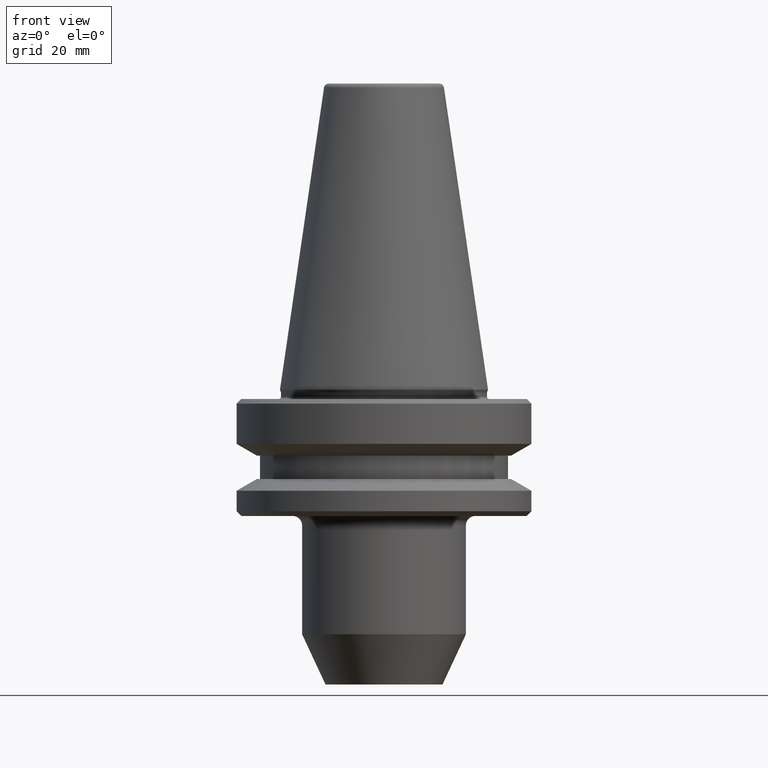
[diagram: clean part render]
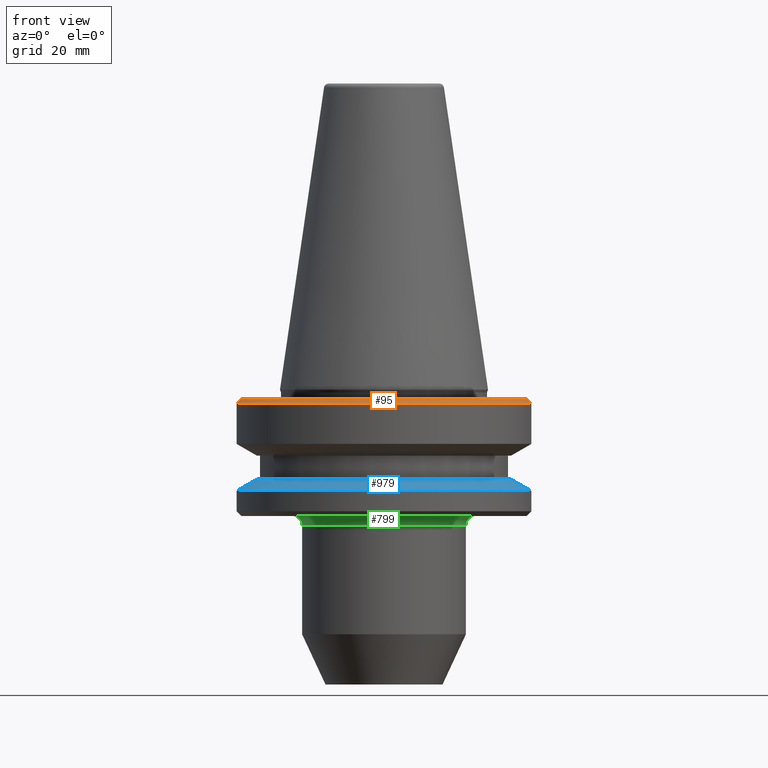
[diagram: same view with three faces highlighted in distinct colors, each labeled with its STEP entity id]
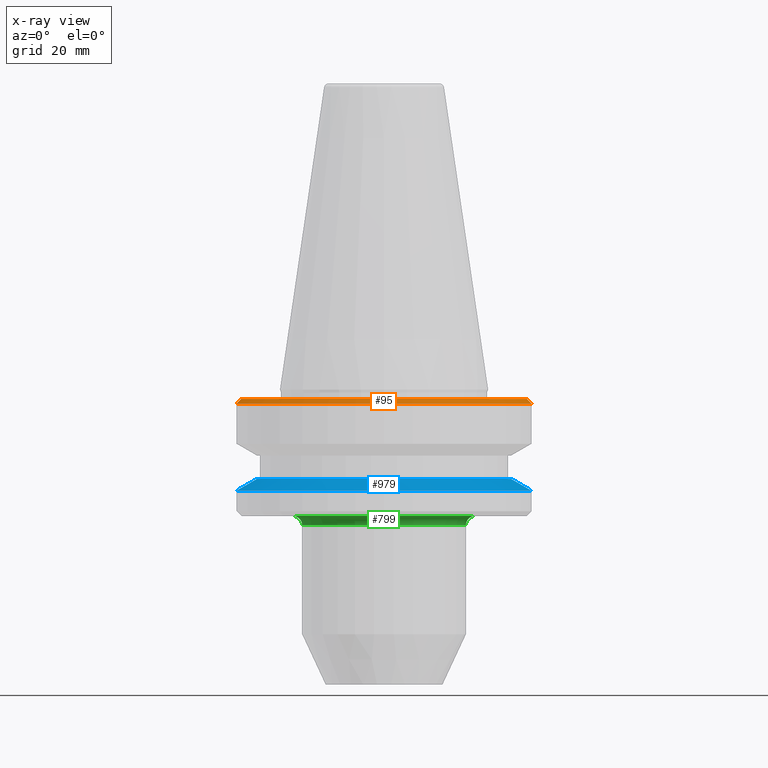
[diagram: x-ray of the same camera — body ghosted, the three highlighted faces saturated]
A machine part, front view with three faces highlighted in distinct colors.
The next image is the same camera in x-ray (body ghosted, the three faces saturated) — at least one of them is partly hidden behind the body in this view.
Their STEP definitions:

[orange] entity #95 — the highlighted conical surface has half-angle 45 deg.
#4 = CARTESIAN_POINT ( 'NONE',  ( 31.49999999999997200, 0.0000000000000000000, -2.999999999999780600 ) ) ;
#9 = CIRCLE ( 'NONE', #393, 31.49999999999997200 ) ;
#70 = ORIENTED_EDGE ( 'NONE', *, *, #150, .T. ) ;
#95 = ADVANCED_FACE ( 'NONE', ( #760 ), #1047, .T. ) ;
#112 = VERTEX_POINT ( 'NONE', #968 ) ;
#135 = DIRECTION ( 'NONE',  ( -0.0000000000000000000, -0.0000000000000000000, 1.000000000000000000 ) ) ;
#150 = EDGE_CURVE ( 'NONE', #418, #837, #399, .T. ) ;
#154 = DIRECTION ( 'NONE',  ( -0.7071067811865474600, 0.0000000000000000000, -0.7071067811865475700 ) ) ;
#162 = CARTESIAN_POINT ( 'NONE',  ( -30.49999999999997200, 0.0000000000000000000, -1.999999999999779700 ) ) ;
#228 = LINE ( 'NONE', #824, #424 ) ;
#258 = DIRECTION ( 'NONE',  ( 1.000000000000000000, 0.0000000000000000000, 0.0000000000000000000 ) ) ;
#286 = CARTESIAN_POINT ( 'NONE',  ( -31.49999999999997200, 0.0000000000000000000, -2.999999999999780600 ) ) ;
#308 = CARTESIAN_POINT ( 'NONE',  ( 0.0000000000000000000, 0.0000000000000000000, -1.999999999999779700 ) ) ;
#334 = CIRCLE ( 'NONE', #790, 30.49999999999997200 ) ;
#341 = EDGE_CURVE ( 'NONE', #837, #1051, #9, .T. ) ;
#342 = EDGE_LOOP ( 'NONE', ( #648, #897, #70, #567 ) ) ;
#393 = AXIS2_PLACEMENT_3D ( 'NONE', #493, #135, #1025 ) ;
#399 = LINE ( 'NONE', #286, #961 ) ;
#418 = VERTEX_POINT ( 'NONE', #162 ) ;
#424 = VECTOR ( 'NONE', #791, 1000.000000000000000 ) ;
#493 = CARTESIAN_POINT ( 'NONE',  ( 0.0000000000000000000, 0.0000000000000000000, -2.999999999999780600 ) ) ;
#567 = ORIENTED_EDGE ( 'NONE', *, *, #341, .T. ) ;
#570 = CARTESIAN_POINT ( 'NONE',  ( -31.49999999999997200, 3.857637417314159500E-015, -2.999999999999780600 ) ) ;
#595 = DIRECTION ( 'NONE',  ( -1.000000000000000000, 0.0000000000000000000, 0.0000000000000000000 ) ) ;
#648 = ORIENTED_EDGE ( 'NONE', *, *, #930, .F. ) ;
#706 = AXIS2_PLACEMENT_3D ( 'NONE', #752, #986, #595 ) ;
#752 = CARTESIAN_POINT ( 'NONE',  ( 0.0000000000000000000, 0.0000000000000000000, -2.999999999999780600 ) ) ;
#760 = FACE_OUTER_BOUND ( 'NONE', #342, .T. ) ;
#790 = AXIS2_PLACEMENT_3D ( 'NONE', #308, #922, #258 ) ;
#791 = DIRECTION ( 'NONE',  ( 0.7071067811865474600, 8.659560562354931600E-017, -0.7071067811865475700 ) ) ;
#824 = CARTESIAN_POINT ( 'NONE',  ( 31.49999999999997200, 3.857637417314159500E-015, -2.999999999999780600 ) ) ;
#837 = VERTEX_POINT ( 'NONE', #570 ) ;
#857 = EDGE_CURVE ( 'NONE', #418, #112, #334, .T. ) ;
#897 = ORIENTED_EDGE ( 'NONE', *, *, #857, .F. ) ;
#922 = DIRECTION ( 'NONE',  ( -0.0000000000000000000, -0.0000000000000000000, 1.000000000000000000 ) ) ;
#930 = EDGE_CURVE ( 'NONE', #112, #1051, #228, .T. ) ;
#961 = VECTOR ( 'NONE', #154, 1000.000000000000000 ) ;
#968 = CARTESIAN_POINT ( 'NONE',  ( 30.49999999999997200, 3.796405077356791200E-015, -1.999999999999779700 ) ) ;
#986 = DIRECTION ( 'NONE',  ( 0.0000000000000000000, 0.0000000000000000000, -1.000000000000000000 ) ) ;
#1025 = DIRECTION ( 'NONE',  ( 1.000000000000000000, 0.0000000000000000000, 0.0000000000000000000 ) ) ;
#1047 = CONICAL_SURFACE ( 'NONE', #706, 31.49999999999997200, 0.7853981633974482800 ) ;
#1051 = VERTEX_POINT ( 'NONE', #4 ) ;

[blue] entity #979 — the highlighted conical surface has half-angle 60 deg.
#34 = DIRECTION ( 'NONE',  ( -0.0000000000000000000, -0.0000000000000000000, 1.000000000000000000 ) ) ;
#42 = CARTESIAN_POINT ( 'NONE',  ( 0.0000000000000000000, 0.0000000000000000000, -21.60014200640453200 ) ) ;
#53 = EDGE_CURVE ( 'NONE', #1024, #218, #464, .T. ) ;
#76 = CARTESIAN_POINT ( 'NONE',  ( 27.16962701892167300, 3.592478546794586600E-015, -19.10000000008738000 ) ) ;
#86 = VERTEX_POINT ( 'NONE', #693 ) ;
#117 = LINE ( 'NONE', #462, #910 ) ;
#131 = EDGE_CURVE ( 'NONE', #218, #86, #234, .T. ) ;
#133 = EDGE_LOOP ( 'NONE', ( #387, #1020, #517, #445 ) ) ;
#215 = CARTESIAN_POINT ( 'NONE',  ( 31.50000000000019500, 3.857637417314186400E-015, -21.60014200640453200 ) ) ;
#218 = VERTEX_POINT ( 'NONE', #76 ) ;
#234 = LINE ( 'NONE', #215, #818 ) ;
#387 = ORIENTED_EDGE ( 'NONE', *, *, #131, .F. ) ;
#414 = AXIS2_PLACEMENT_3D ( 'NONE', #42, #508, #529 ) ;
#426 = VERTEX_POINT ( 'NONE', #972 ) ;
#427 = EDGE_CURVE ( 'NONE', #426, #86, #509, .T. ) ;
#433 = DIRECTION ( 'NONE',  ( -0.8660254037844400400, 0.0000000000000000000, -0.4999999999999976100 ) ) ;
#445 = ORIENTED_EDGE ( 'NONE', *, *, #427, .T. ) ;
#462 = CARTESIAN_POINT ( 'NONE',  ( -31.50000000000019500, 0.0000000000000000000, -21.60014200640453200 ) ) ;
#464 = CIRCLE ( 'NONE', #594, 27.16962701892167300 ) ;
#480 = DIRECTION ( 'NONE',  ( -0.0000000000000000000, -0.0000000000000000000, 1.000000000000000000 ) ) ;
#508 = DIRECTION ( 'NONE',  ( 0.0000000000000000000, 0.0000000000000000000, -1.000000000000000000 ) ) ;
#509 = CIRCLE ( 'NONE', #531, 31.50000000000019500 ) ;
#517 = ORIENTED_EDGE ( 'NONE', *, *, #901, .T. ) ;
#529 = DIRECTION ( 'NONE',  ( -1.000000000000000000, 0.0000000000000000000, 0.0000000000000000000 ) ) ;
#531 = AXIS2_PLACEMENT_3D ( 'NONE', #985, #480, #962 ) ;
#537 = CARTESIAN_POINT ( 'NONE',  ( 0.0000000000000000000, 0.0000000000000000000, -19.10000000008738000 ) ) ;
#585 = FACE_OUTER_BOUND ( 'NONE', #133, .T. ) ;
#594 = AXIS2_PLACEMENT_3D ( 'NONE', #537, #34, #949 ) ;
#693 = CARTESIAN_POINT ( 'NONE',  ( 31.50000000000019500, 0.0000000000000000000, -21.60014200640453200 ) ) ;
#818 = VECTOR ( 'NONE', #855, 1000.000000000000000 ) ;
#831 = CARTESIAN_POINT ( 'NONE',  ( -27.16962701892167300, 0.0000000000000000000, -19.10000000008738000 ) ) ;
#855 = DIRECTION ( 'NONE',  ( 0.8660254037844400400, 1.060575238724908600E-016, -0.4999999999999976100 ) ) ;
#901 = EDGE_CURVE ( 'NONE', #1024, #426, #117, .T. ) ;
#910 = VECTOR ( 'NONE', #433, 1000.000000000000000 ) ;
#949 = DIRECTION ( 'NONE',  ( 1.000000000000000000, 0.0000000000000000000, 0.0000000000000000000 ) ) ;
#962 = DIRECTION ( 'NONE',  ( 1.000000000000000000, 0.0000000000000000000, 0.0000000000000000000 ) ) ;
#966 = CONICAL_SURFACE ( 'NONE', #414, 31.50000000000019500, 1.047197551196600500 ) ;
#972 = CARTESIAN_POINT ( 'NONE',  ( -31.50000000000019500, 3.857637417314186400E-015, -21.60014200640453200 ) ) ;
#979 = ADVANCED_FACE ( 'NONE', ( #585 ), #966, .T. ) ;
#985 = CARTESIAN_POINT ( 'NONE',  ( 0.0000000000000000000, 0.0000000000000000000, -21.60014200640453200 ) ) ;
#1020 = ORIENTED_EDGE ( 'NONE', *, *, #53, .F. ) ;
#1024 = VERTEX_POINT ( 'NONE', #831 ) ;

[green] entity #799 — the highlighted toroidal blend (fillet) surface has major radius 19.5 mm and minor (blend) radius 2 mm.
#2 = CARTESIAN_POINT ( 'NONE',  ( -19.49999999999829500, 2.388061258337130300E-015, -29.00000000008767700 ) ) ;
#12 = VERTEX_POINT ( 'NONE', #1018 ) ;
#24 = FACE_OUTER_BOUND ( 'NONE', #888, .T. ) ;
#27 = VERTEX_POINT ( 'NONE', #873 ) ;
#99 = AXIS2_PLACEMENT_3D ( 'NONE', #2, #566, #309 ) ;
#120 = DIRECTION ( 'NONE',  ( 0.0000000000000000000, -1.000000000000000000, 0.0000000000000000000 ) ) ;
#176 = CARTESIAN_POINT ( 'NONE',  ( 0.0000000000000000000, 0.0000000000000000000, -29.00000000008767700 ) ) ;
#182 = ORIENTED_EDGE ( 'NONE', *, *, #703, .F. ) ;
#186 = DIRECTION ( 'NONE',  ( -0.0000000000000000000, -0.0000000000000000000, 1.000000000000000000 ) ) ;
#216 = CIRCLE ( 'NONE', #691, 2.000000000000001800 ) ;
#231 = DIRECTION ( 'NONE',  ( 1.000000000000000000, 0.0000000000000000000, 0.0000000000000000000 ) ) ;
#309 = DIRECTION ( 'NONE',  ( -1.000000000000000000, 1.224646799147353500E-016, 0.0000000000000000000 ) ) ;
#310 = CARTESIAN_POINT ( 'NONE',  ( 19.49999999999829500, 0.0000000000000000000, -29.00000000008767700 ) ) ;
#322 = VERTEX_POINT ( 'NONE', #634 ) ;
#403 = ORIENTED_EDGE ( 'NONE', *, *, #629, .T. ) ;
#406 = DIRECTION ( 'NONE',  ( -0.0000000000000000000, -0.0000000000000000000, 1.000000000000000000 ) ) ;
#420 = DIRECTION ( 'NONE',  ( -0.0000000000000000000, -0.0000000000000000000, 1.000000000000000000 ) ) ;
#470 = ORIENTED_EDGE ( 'NONE', *, *, #605, .T. ) ;
#475 = DIRECTION ( 'NONE',  ( 1.000000000000000000, 0.0000000000000000000, 0.0000000000000000000 ) ) ;
#490 = EDGE_CURVE ( 'NONE', #322, #27, #663, .T. ) ;
#566 = DIRECTION ( 'NONE',  ( 1.224646799147353200E-016, 1.000000000000000000, 0.0000000000000000000 ) ) ;
#583 = ORIENTED_EDGE ( 'NONE', *, *, #490, .F. ) ;
#603 = TOROIDAL_SURFACE ( 'NONE', #992, 19.49999999999829500, 2.000000000000001800 ) ;
#605 = EDGE_CURVE ( 'NONE', #322, #779, #947, .T. ) ;
#606 = DIRECTION ( 'NONE',  ( 0.0000000000000000000, 0.0000000000000000000, -1.000000000000000000 ) ) ;
#629 = EDGE_CURVE ( 'NONE', #779, #12, #918, .T. ) ;
#634 = CARTESIAN_POINT ( 'NONE',  ( -19.49999999999829500, 2.388061258337130300E-015, -27.00000000008767700 ) ) ;
#663 = CIRCLE ( 'NONE', #887, 19.49999999999829500 ) ;
#685 = CARTESIAN_POINT ( 'NONE',  ( -17.49999999999829500, 2.143131898507659200E-015, -29.00000000008767700 ) ) ;
#691 = AXIS2_PLACEMENT_3D ( 'NONE', #310, #120, #606 ) ;
#703 = EDGE_CURVE ( 'NONE', #27, #12, #216, .T. ) ;
#704 = CARTESIAN_POINT ( 'NONE',  ( 0.0000000000000000000, 0.0000000000000000000, -27.00000000008767700 ) ) ;
#779 = VERTEX_POINT ( 'NONE', #685 ) ;
#799 = ADVANCED_FACE ( 'NONE', ( #24 ), #603, .F. ) ;
#801 = AXIS2_PLACEMENT_3D ( 'NONE', #176, #406, #868 ) ;
#868 = DIRECTION ( 'NONE',  ( 1.000000000000000000, 0.0000000000000000000, 0.0000000000000000000 ) ) ;
#873 = CARTESIAN_POINT ( 'NONE',  ( 19.49999999999829500, 0.0000000000000000000, -27.00000000008767700 ) ) ;
#887 = AXIS2_PLACEMENT_3D ( 'NONE', #704, #186, #231 ) ;
#888 = EDGE_LOOP ( 'NONE', ( #583, #470, #403, #182 ) ) ;
#918 = CIRCLE ( 'NONE', #801, 17.49999999999829500 ) ;
#947 = CIRCLE ( 'NONE', #99, 2.000000000000001800 ) ;
#992 = AXIS2_PLACEMENT_3D ( 'NONE', #993, #420, #475 ) ;
#993 = CARTESIAN_POINT ( 'NONE',  ( 0.0000000000000000000, 0.0000000000000000000, -29.00000000008767700 ) ) ;
#1018 = CARTESIAN_POINT ( 'NONE',  ( 17.49999999999829500, 0.0000000000000000000, -29.00000000008767700 ) ) ;